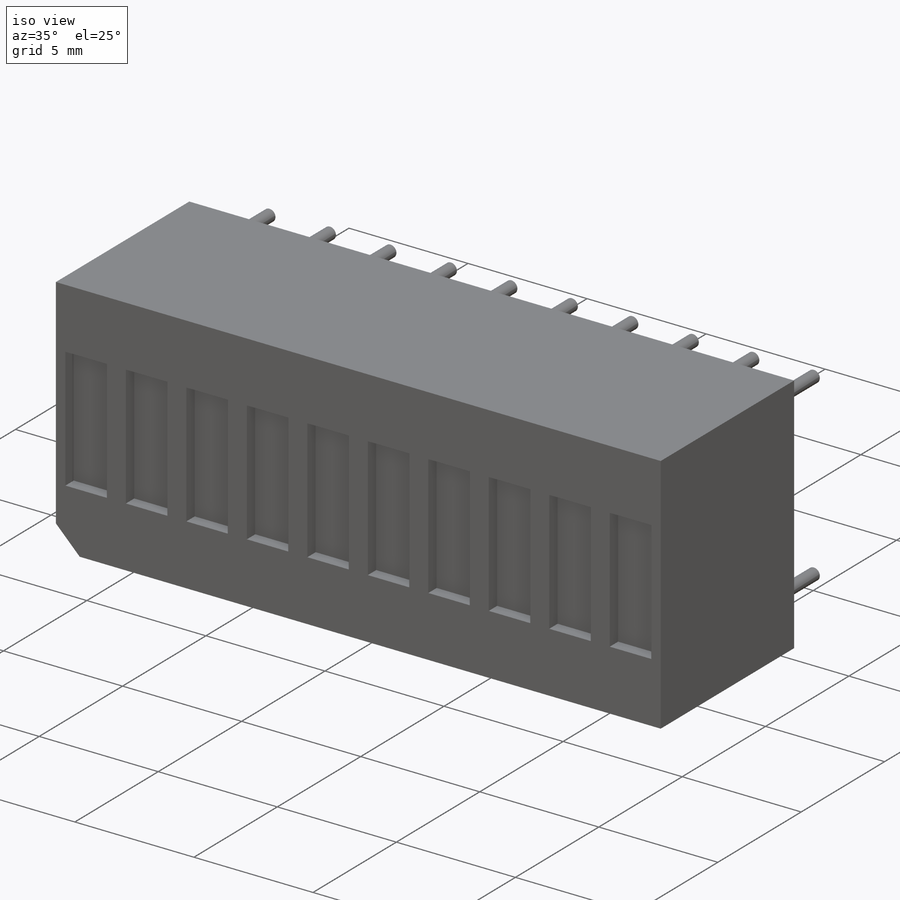
[diagram: iso view]
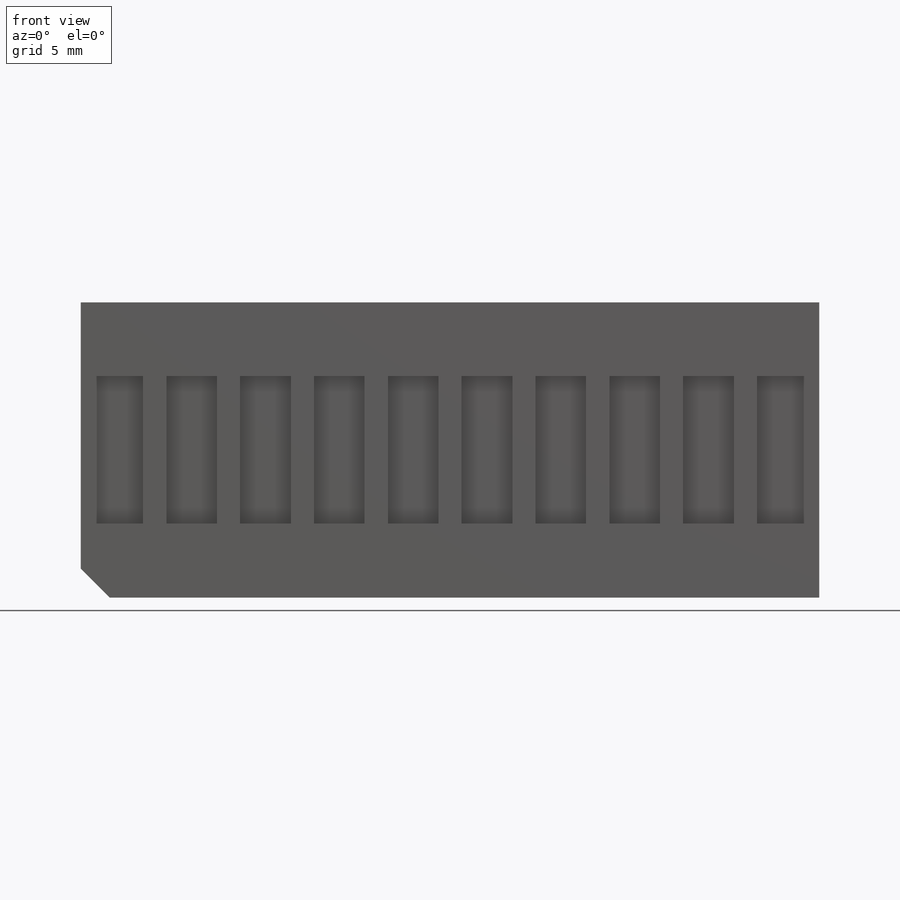
[diagram: front view]
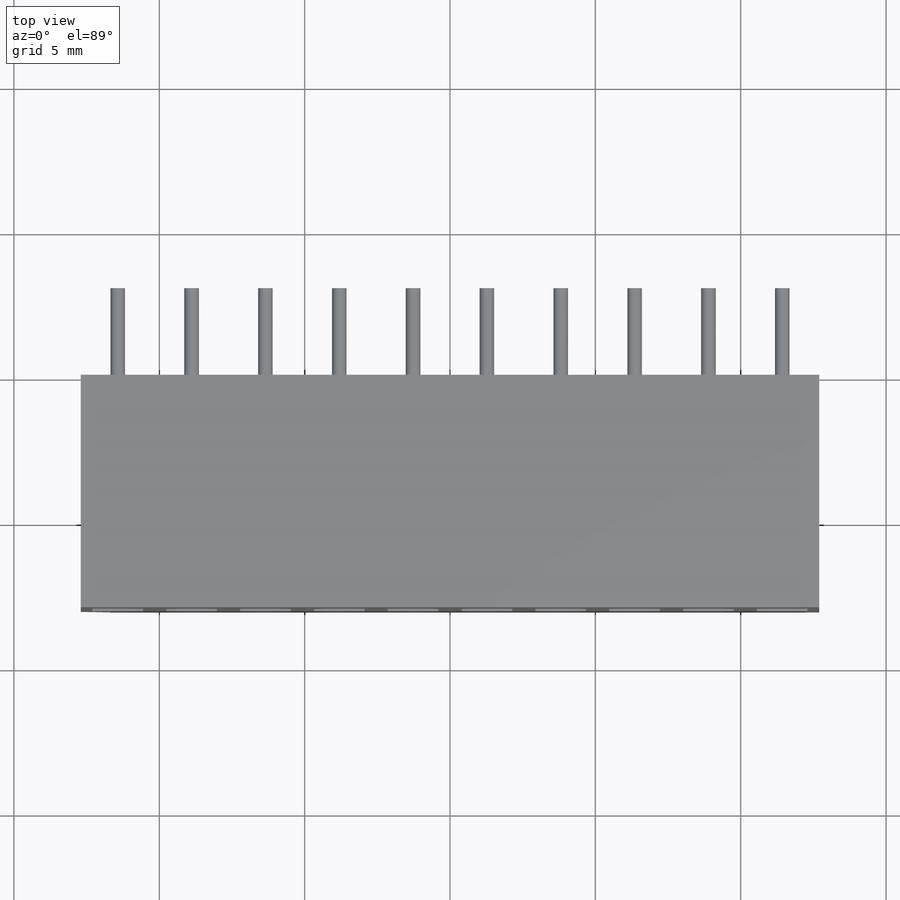
[diagram: top view]
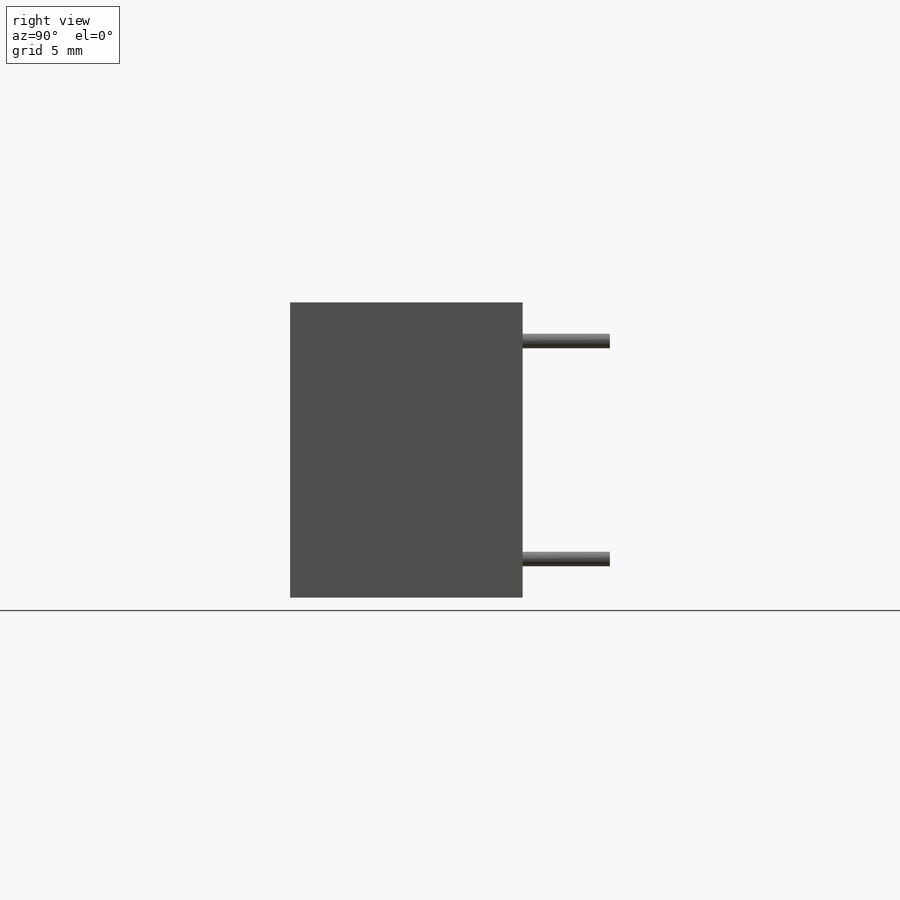
[diagram: right view]
SOLIDWORKS PART (.sldprt)
format: sldprt  version: not decoded by parser v0  size: 282,624 bytes
history: native  units: mm
features: sketch x4, plane x3, extrude x2, pattern_linear x2, material x1, cut_extrude x1 (+13 scaffold rows collapsed)
feature tree (26):
  scaffold x13  (default folders/planes/origin — collapsed)
  material  "Material <sin especificar>"
  plane  "Alzado"
  plane  "Planta"
  plane  "Vista lateral"
  sketch  "Croquis1"  dims[D1=10.16mm D2=25.4mm D5=1.0mm]
  extrude  "Saliente-Extruir1"  Depth=8mm
  sketch  "Croquis2"  dims[c1.D1=1.25mm c1.D2=3.75mm c1.D3=2.54mm c1.D4=2.54mm c1.D5=2.54mm c1.D6=2.54mm c1.D7=1.29mm c2.D1=1.27mm]
  sketch  "Croquis3"  dims[D1=0.5mm]
  extrude  "Saliente-Extruir2"  Depth=3mm
  pattern_linear  "MatrizL1"  Count1=2 Count2=2 Spacing1=12.7mm Spacing2=7.5mm
  sketch  "Croquis4"  dims[D1=5.08mm D2=1.74mm]
  cut_extrude  "Cortar-Extruir1"  Depth=0.5mm
  pattern_linear  "MatrizL2"  Count1=10 Count2=1 Spacing1=2.54mm Spacing2=7.5mm
decode coverage: 9 of 9 modeling features carry decoded parameters
note: suppression state not decoded; provenance and decode notes live in map.json
